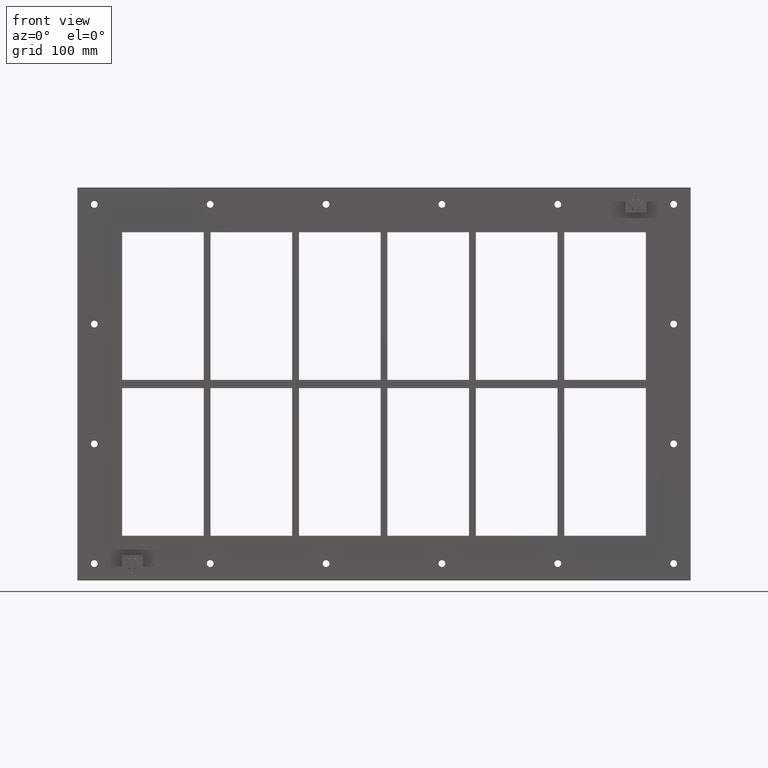
[diagram: clean part render]
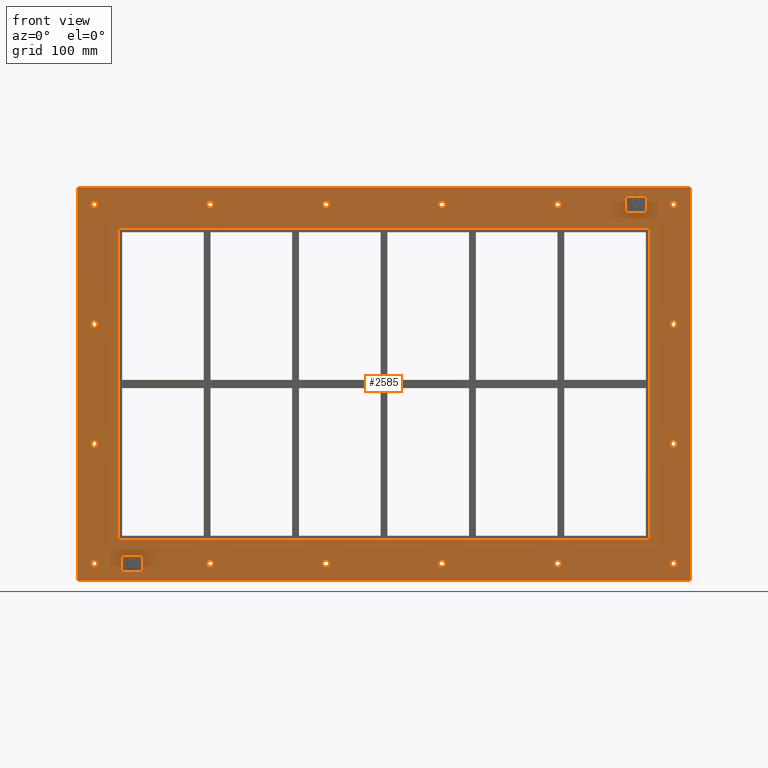
[diagram: same view with one face highlighted and labeled with its STEP entity id]
A machine part, front view. The second image highlights one B-rep face of the part: STEP entity #2585.
In plain terms, the highlighted planar face has unit normal (0, 1, 0).
Its self-contained STEP definition (entity closure, byte-faithful):
#84=CARTESIAN_POINT('',(-422.50000000000006,0.0,-264.99999999999994));
#85=VERTEX_POINT('',#84);
#86=CARTESIAN_POINT('',(-427.50000000000006,0.0,-264.99999999999994));
#87=DIRECTION('',(0.0,1.0,0.0));
#88=DIRECTION('',(1.0,0.0,0.0));
#89=AXIS2_PLACEMENT_3D('',#86,#87,#88);
#90=CIRCLE('',#89,5.0);
#91=EDGE_CURVE('',#85,#85,#90,.T.);
#112=CARTESIAN_POINT('',(432.49999999999994,0.0,-88.300000000000054));
#113=VERTEX_POINT('',#112);
#114=CARTESIAN_POINT('',(427.49999999999994,0.0,-88.300000000000054));
#115=DIRECTION('',(0.0,1.0,0.0));
#116=DIRECTION('',(1.0,0.0,0.0));
#117=AXIS2_PLACEMENT_3D('',#114,#115,#116);
#118=CIRCLE('',#117,5.0);
#119=EDGE_CURVE('',#113,#113,#118,.T.);
#140=CARTESIAN_POINT('',(-422.50000000000006,0.0,-88.300000000000054));
#141=VERTEX_POINT('',#140);
#142=CARTESIAN_POINT('',(-427.50000000000006,0.0,-88.300000000000054));
#143=DIRECTION('',(0.0,1.0,0.0));
#144=DIRECTION('',(1.0,0.0,0.0));
#145=AXIS2_PLACEMENT_3D('',#142,#143,#144);
#146=CIRCLE('',#145,5.0);
#147=EDGE_CURVE('',#141,#141,#146,.T.);
#168=CARTESIAN_POINT('',(432.49999999999994,0.0,88.39999999999992));
#169=VERTEX_POINT('',#168);
#170=CARTESIAN_POINT('',(427.49999999999994,0.0,88.39999999999992));
#171=DIRECTION('',(0.0,1.0,0.0));
#172=DIRECTION('',(1.0,0.0,0.0));
#173=AXIS2_PLACEMENT_3D('',#170,#171,#172);
#174=CIRCLE('',#173,5.0);
#175=EDGE_CURVE('',#169,#169,#174,.T.);
#196=CARTESIAN_POINT('',(-422.50000000000006,0.0,88.39999999999992));
#197=VERTEX_POINT('',#196);
#198=CARTESIAN_POINT('',(-427.50000000000006,0.0,88.39999999999992));
#199=DIRECTION('',(0.0,1.0,0.0));
#200=DIRECTION('',(1.0,0.0,0.0));
#201=AXIS2_PLACEMENT_3D('',#198,#199,#200);
#202=CIRCLE('',#201,5.0);
#203=EDGE_CURVE('',#197,#197,#202,.T.);
#224=CARTESIAN_POINT('',(-251.50000000000011,0.0,265.09999999999991));
#225=VERTEX_POINT('',#224);
#226=CARTESIAN_POINT('',(-256.50000000000011,0.0,265.09999999999991));
#227=DIRECTION('',(0.0,1.0,0.0));
#228=DIRECTION('',(1.0,0.0,0.0));
#229=AXIS2_PLACEMENT_3D('',#226,#227,#228);
#230=CIRCLE('',#229,5.0);
#231=EDGE_CURVE('',#225,#225,#230,.T.);
#252=CARTESIAN_POINT('',(-251.50000000000011,0.0,-265.0));
#253=VERTEX_POINT('',#252);
#254=CARTESIAN_POINT('',(-256.50000000000011,0.0,-265.0));
#255=DIRECTION('',(0.0,1.0,0.0));
#256=DIRECTION('',(1.0,0.0,0.0));
#257=AXIS2_PLACEMENT_3D('',#254,#255,#256);
#258=CIRCLE('',#257,5.0);
#259=EDGE_CURVE('',#253,#253,#258,.T.);
#280=CARTESIAN_POINT('',(-80.500000000000114,0.0,265.09999999999991));
#281=VERTEX_POINT('',#280);
#282=CARTESIAN_POINT('',(-85.500000000000114,0.0,265.09999999999991));
#283=DIRECTION('',(0.0,1.0,0.0));
#284=DIRECTION('',(1.0,0.0,0.0));
#285=AXIS2_PLACEMENT_3D('',#282,#283,#284);
#286=CIRCLE('',#285,5.0);
#287=EDGE_CURVE('',#281,#281,#286,.T.);
#308=CARTESIAN_POINT('',(-80.500000000000114,0.0,-265.0));
#309=VERTEX_POINT('',#308);
#310=CARTESIAN_POINT('',(-85.500000000000114,0.0,-265.0));
#311=DIRECTION('',(0.0,1.0,0.0));
#312=DIRECTION('',(1.0,0.0,0.0));
#313=AXIS2_PLACEMENT_3D('',#310,#311,#312);
#314=CIRCLE('',#313,5.0);
#315=EDGE_CURVE('',#309,#309,#314,.T.);
#336=CARTESIAN_POINT('',(90.499999999999901,0.0,265.09999999999991));
#337=VERTEX_POINT('',#336);
#338=CARTESIAN_POINT('',(85.499999999999901,0.0,265.09999999999991));
#339=DIRECTION('',(0.0,1.0,0.0));
#340=DIRECTION('',(1.0,0.0,0.0));
#341=AXIS2_PLACEMENT_3D('',#338,#339,#340);
#342=CIRCLE('',#341,5.0);
#343=EDGE_CURVE('',#337,#337,#342,.T.);
#364=CARTESIAN_POINT('',(90.499999999999901,0.0,-265.0));
#365=VERTEX_POINT('',#364);
#366=CARTESIAN_POINT('',(85.499999999999901,0.0,-265.0));
#367=DIRECTION('',(0.0,1.0,0.0));
#368=DIRECTION('',(1.0,0.0,0.0));
#369=AXIS2_PLACEMENT_3D('',#366,#367,#368);
#370=CIRCLE('',#369,5.0);
#371=EDGE_CURVE('',#365,#365,#370,.T.);
#392=CARTESIAN_POINT('',(261.49999999999989,0.0,265.09999999999991));
#393=VERTEX_POINT('',#392);
#394=CARTESIAN_POINT('',(256.49999999999989,0.0,265.09999999999991));
#395=DIRECTION('',(0.0,1.0,0.0));
#396=DIRECTION('',(1.0,0.0,0.0));
#397=AXIS2_PLACEMENT_3D('',#394,#395,#396);
#398=CIRCLE('',#397,5.0);
#399=EDGE_CURVE('',#393,#393,#398,.T.);
#420=CARTESIAN_POINT('',(261.49999999999989,0.0,-265.0));
#421=VERTEX_POINT('',#420);
#422=CARTESIAN_POINT('',(256.49999999999989,0.0,-265.0));
#423=DIRECTION('',(0.0,1.0,0.0));
#424=DIRECTION('',(1.0,0.0,0.0));
#425=AXIS2_PLACEMENT_3D('',#422,#423,#424);
#426=CIRCLE('',#425,5.0);
#427=EDGE_CURVE('',#421,#421,#426,.T.);
#448=CARTESIAN_POINT('',(432.49999999999994,0.0,-265.0));
#449=VERTEX_POINT('',#448);
#450=CARTESIAN_POINT('',(427.49999999999994,0.0,-265.0));
#451=DIRECTION('',(0.0,1.0,0.0));
#452=DIRECTION('',(1.0,0.0,0.0));
#453=AXIS2_PLACEMENT_3D('',#450,#451,#452);
#454=CIRCLE('',#453,5.0);
#455=EDGE_CURVE('',#449,#449,#454,.T.);
#476=CARTESIAN_POINT('',(-422.50000000000006,0.0,265.09999999999991));
#477=VERTEX_POINT('',#476);
#478=CARTESIAN_POINT('',(-427.50000000000006,0.0,265.09999999999991));
#479=DIRECTION('',(0.0,1.0,0.0));
#480=DIRECTION('',(1.0,0.0,0.0));
#481=AXIS2_PLACEMENT_3D('',#478,#479,#480);
#482=CIRCLE('',#481,5.0);
#483=EDGE_CURVE('',#477,#477,#482,.T.);
#504=CARTESIAN_POINT('',(432.49999999999994,0.0,265.09999999999991));
#505=VERTEX_POINT('',#504);
#506=CARTESIAN_POINT('',(427.49999999999994,0.0,265.09999999999991));
#507=DIRECTION('',(0.0,1.0,0.0));
#508=DIRECTION('',(1.0,0.0,0.0));
#509=AXIS2_PLACEMENT_3D('',#506,#507,#508);
#510=CIRCLE('',#509,5.0);
#511=EDGE_CURVE('',#505,#505,#510,.T.);
#2428=CARTESIAN_POINT('',(-4.593408E-014,0.0,-1.842148E-014));
#2429=DIRECTION('',(0.0,1.0,0.0));
#2430=DIRECTION('',(0.0,0.0,1.0));
#2431=AXIS2_PLACEMENT_3D('',#2428,#2429,#2430);
#2432=PLANE('',#2431);
#2433=CARTESIAN_POINT('',(-452.5,0.0,290.0));
#2434=VERTEX_POINT('',#2433);
#2435=CARTESIAN_POINT('',(452.49999999999994,0.0,290.0));
#2436=VERTEX_POINT('',#2435);
#2437=CARTESIAN_POINT('',(-452.5,0.0,290.0));
#2438=DIRECTION('',(1.0,0.0,0.0));
#2439=VECTOR('',#2438,905.0);
#2440=LINE('',#2437,#2439);
#2441=EDGE_CURVE('',#2434,#2436,#2440,.T.);
#2442=ORIENTED_EDGE('',*,*,#2441,.F.);
#2443=CARTESIAN_POINT('',(-452.5,0.0,-290.00000000000006));
#2444=VERTEX_POINT('',#2443);
#2445=CARTESIAN_POINT('',(-452.5,0.0,-290.00000000000006));
#2446=DIRECTION('',(0.0,0.0,1.0));
#2447=VECTOR('',#2446,580.0);
#2448=LINE('',#2445,#2447);
#2449=EDGE_CURVE('',#2444,#2434,#2448,.T.);
#2450=ORIENTED_EDGE('',*,*,#2449,.F.);
#2451=CARTESIAN_POINT('',(452.49999999999994,0.0,-290.00000000000006));
#2452=VERTEX_POINT('',#2451);
#2453=CARTESIAN_POINT('',(452.49999999999994,0.0,-290.00000000000006));
#2454=DIRECTION('',(-1.0,0.0,0.0));
#2455=VECTOR('',#2454,905.0);
#2456=LINE('',#2453,#2455);
#2457=EDGE_CURVE('',#2452,#2444,#2456,.T.);
#2458=ORIENTED_EDGE('',*,*,#2457,.F.);
#2459=CARTESIAN_POINT('',(452.49999999999994,0.0,290.0));
#2460=DIRECTION('',(0.0,0.0,-1.0));
#2461=VECTOR('',#2460,580.0);
#2462=LINE('',#2459,#2461);
#2463=EDGE_CURVE('',#2436,#2452,#2462,.T.);
#2464=ORIENTED_EDGE('',*,*,#2463,.F.);
#2465=EDGE_LOOP('',(#2442,#2450,#2458,#2464));
#2466=FACE_OUTER_BOUND('',#2465,.T.);
#2467=ORIENTED_EDGE('',*,*,#91,.T.);
#2468=EDGE_LOOP('',(#2467));
#2469=FACE_BOUND('',#2468,.T.);
#2470=ORIENTED_EDGE('',*,*,#119,.T.);
#2471=EDGE_LOOP('',(#2470));
#2472=FACE_BOUND('',#2471,.T.);
#2473=ORIENTED_EDGE('',*,*,#147,.T.);
#2474=EDGE_LOOP('',(#2473));
#2475=FACE_BOUND('',#2474,.T.);
#2476=ORIENTED_EDGE('',*,*,#175,.T.);
#2477=EDGE_LOOP('',(#2476));
#2478=FACE_BOUND('',#2477,.T.);
#2479=ORIENTED_EDGE('',*,*,#203,.T.);
#2480=EDGE_LOOP('',(#2479));
#2481=FACE_BOUND('',#2480,.T.);
#2482=ORIENTED_EDGE('',*,*,#231,.T.);
#2483=EDGE_LOOP('',(#2482));
#2484=FACE_BOUND('',#2483,.T.);
#2485=ORIENTED_EDGE('',*,*,#259,.T.);
#2486=EDGE_LOOP('',(#2485));
#2487=FACE_BOUND('',#2486,.T.);
#2488=ORIENTED_EDGE('',*,*,#287,.T.);
#2489=EDGE_LOOP('',(#2488));
#2490=FACE_BOUND('',#2489,.T.);
#2491=ORIENTED_EDGE('',*,*,#315,.T.);
#2492=EDGE_LOOP('',(#2491));
#2493=FACE_BOUND('',#2492,.T.);
#2494=ORIENTED_EDGE('',*,*,#343,.T.);
#2495=EDGE_LOOP('',(#2494));
#2496=FACE_BOUND('',#2495,.T.);
#2497=ORIENTED_EDGE('',*,*,#371,.T.);
#2498=EDGE_LOOP('',(#2497));
#2499=FACE_BOUND('',#2498,.T.);
#2500=ORIENTED_EDGE('',*,*,#399,.T.);
#2501=EDGE_LOOP('',(#2500));
#2502=FACE_BOUND('',#2501,.T.);
#2503=ORIENTED_EDGE('',*,*,#427,.T.);
#2504=EDGE_LOOP('',(#2503));
#2505=FACE_BOUND('',#2504,.T.);
#2506=ORIENTED_EDGE('',*,*,#455,.T.);
#2507=EDGE_LOOP('',(#2506));
#2508=FACE_BOUND('',#2507,.T.);
#2509=ORIENTED_EDGE('',*,*,#483,.T.);
#2510=EDGE_LOOP('',(#2509));
#2511=FACE_BOUND('',#2510,.T.);
#2512=ORIENTED_EDGE('',*,*,#511,.T.);
#2513=EDGE_LOOP('',(#2512));
#2514=FACE_BOUND('',#2513,.T.);
#2515=CARTESIAN_POINT('',(-390.5,0.0,230.00000000000003));
#2516=VERTEX_POINT('',#2515);
#2517=CARTESIAN_POINT('',(-392.5,0.0,228.00000000000006));
#2518=VERTEX_POINT('',#2517);
#2519=CARTESIAN_POINT('',(-390.5,0.0,228.00000000000006));
#2520=DIRECTION('',(0.0,-1.0,0.0));
#2521=DIRECTION('',(-0.707106781186548,0.0,0.707106781186548));
#2522=AXIS2_PLACEMENT_3D('',#2519,#2520,#2521);
#2523=CIRCLE('',#2522,2.0);
#2524=EDGE_CURVE('',#2516,#2518,#2523,.T.);
#2525=ORIENTED_EDGE('',*,*,#2524,.F.);
#2526=CARTESIAN_POINT('',(390.50000000000006,0.0,230.00000000000003));
#2527=VERTEX_POINT('',#2526);
#2528=CARTESIAN_POINT('',(390.5,0.0,230.00000000000003));
#2529=DIRECTION('',(-1.0,0.0,0.0));
#2530=VECTOR('',#2529,781.0);
#2531=LINE('',#2528,#2530);
#2532=EDGE_CURVE('',#2527,#2516,#2531,.T.);
#2533=ORIENTED_EDGE('',*,*,#2532,.F.);
#2534=CARTESIAN_POINT('',(392.50000000000006,0.0,228.00000000000006));
#2535=VERTEX_POINT('',#2534);
#2536=CARTESIAN_POINT('',(390.50000000000006,0.0,228.00000000000006));
#2537=DIRECTION('',(0.0,-1.0,0.0));
#2538=DIRECTION('',(0.707106781186548,0.0,0.707106781186548));
#2539=AXIS2_PLACEMENT_3D('',#2536,#2537,#2538);
#2540=CIRCLE('',#2539,2.0);
#2541=EDGE_CURVE('',#2535,#2527,#2540,.T.);
#2542=ORIENTED_EDGE('',*,*,#2541,.F.);
#2543=CARTESIAN_POINT('',(392.50000000000006,0.0,-228.00000000000006));
#2544=VERTEX_POINT('',#2543);
#2545=CARTESIAN_POINT('',(392.50000000000006,0.0,-228.00000000000006));
#2546=DIRECTION('',(0.0,0.0,1.0));
#2547=VECTOR('',#2546,456.00000000000011);
#2548=LINE('',#2545,#2547);
#2549=EDGE_CURVE('',#2544,#2535,#2548,.T.);
#2550=ORIENTED_EDGE('',*,*,#2549,.F.);
#2551=CARTESIAN_POINT('',(390.50000000000011,0.0,-230.00000000000003));
#2552=VERTEX_POINT('',#2551);
#2553=CARTESIAN_POINT('',(390.50000000000011,0.0,-228.00000000000006));
#2554=DIRECTION('',(0.0,-1.0,0.0));
#2555=DIRECTION('',(0.707106781186522,0.0,-0.707106781186573));
#2556=AXIS2_PLACEMENT_3D('',#2553,#2554,#2555);
#2557=CIRCLE('',#2556,2.0);
#2558=EDGE_CURVE('',#2552,#2544,#2557,.T.);
#2559=ORIENTED_EDGE('',*,*,#2558,.F.);
#2560=CARTESIAN_POINT('',(-390.5,0.0,-230.00000000000003));
#2561=VERTEX_POINT('',#2560);
#2562=CARTESIAN_POINT('',(-390.5,0.0,-230.00000000000003));
#2563=DIRECTION('',(1.0,0.0,0.0));
#2564=VECTOR('',#2563,781.00000000000011);
#2565=LINE('',#2562,#2564);
#2566=EDGE_CURVE('',#2561,#2552,#2565,.T.);
#2567=ORIENTED_EDGE('',*,*,#2566,.F.);
#2568=CARTESIAN_POINT('',(-392.5,0.0,-228.00000000000006));
#2569=VERTEX_POINT('',#2568);
#2570=CARTESIAN_POINT('',(-390.5,0.0,-228.00000000000006));
#2571=DIRECTION('',(0.0,-1.0,0.0));
#2572=DIRECTION('',(-0.707106781186548,0.0,-0.707106781186548));
#2573=AXIS2_PLACEMENT_3D('',#2570,#2571,#2572);
#2574=CIRCLE('',#2573,2.0);
#2575=EDGE_CURVE('',#2569,#2561,#2574,.T.);
#2576=ORIENTED_EDGE('',*,*,#2575,.F.);
#2577=CARTESIAN_POINT('',(-392.5,0.0,228.00000000000009));
#2578=DIRECTION('',(0.0,0.0,-1.0));
#2579=VECTOR('',#2578,456.00000000000011);
#2580=LINE('',#2577,#2579);
#2581=EDGE_CURVE('',#2518,#2569,#2580,.T.);
#2582=ORIENTED_EDGE('',*,*,#2581,.F.);
#2583=EDGE_LOOP('',(#2525,#2533,#2542,#2550,#2559,#2567,#2576,#2582));
#2584=FACE_BOUND('',#2583,.T.);
#2585=ADVANCED_FACE('',(#2466,#2469,#2472,#2475,#2478,#2481,#2484,#2487,#2490,#2493,#2496,#2499,#2502,#2505,#2508,#2511,#2514,#2584),#2432,.F.);